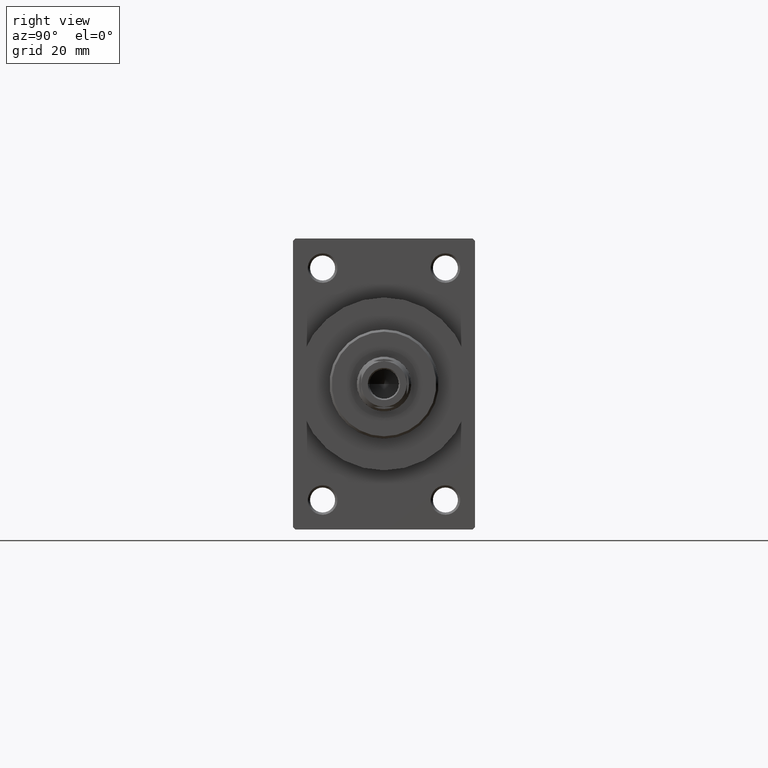
[diagram: clean part render]
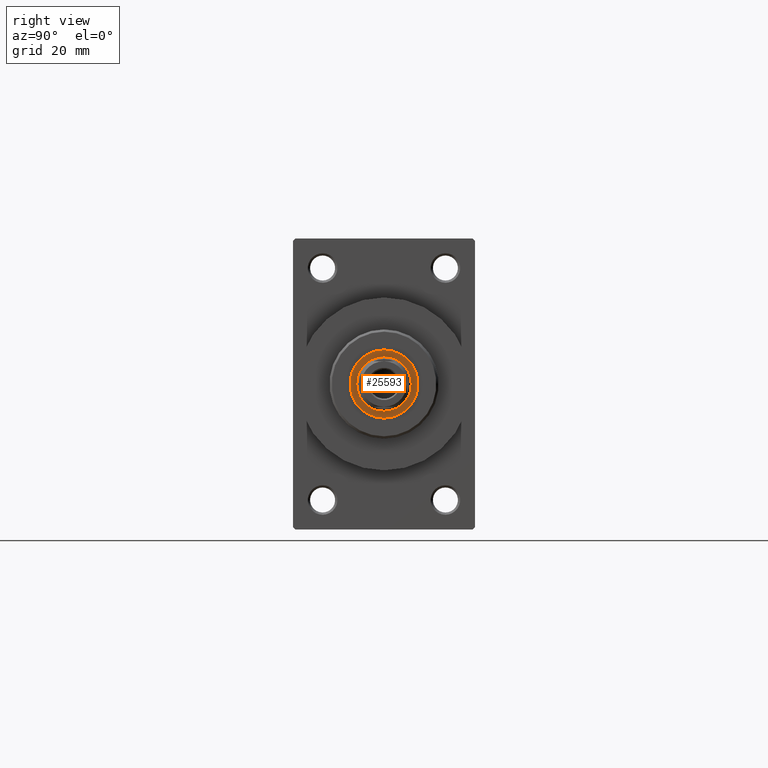
[diagram: same view with one face highlighted and labeled with its STEP entity id]
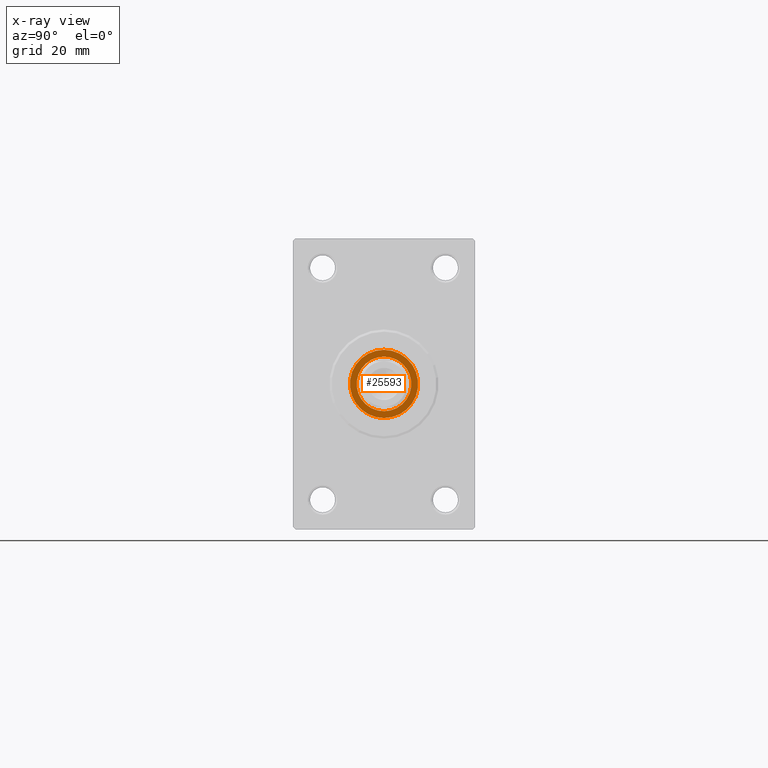
[diagram: x-ray of the same camera — body ghosted, the highlighted face saturated]
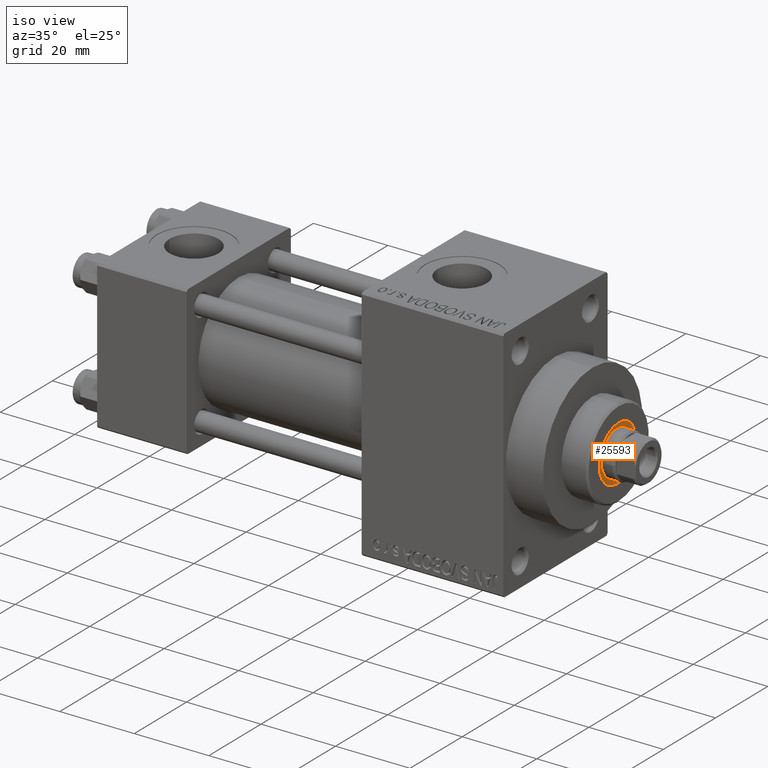
[diagram: same view with one face highlighted and labeled with its STEP entity id]
A machine part, right view. The second image highlights one B-rep face of the part: STEP entity #25593.
The next image is the same camera in x-ray: the body ghosted, the highlighted face saturated — about 0% of this face is hidden behind the body in this view.
A second angle (iso view) of the same face is appended — the face is thin or edge-on in the first view.
In plain terms, the highlighted planar face has unit normal (1, -0, -0).
Its self-contained STEP definition (entity closure, byte-faithful):
#201 = DIRECTION ( 'NONE',  ( 1.000000000000000000, 0.000000000000000000, 0.000000000000000000 ) ) ;
#1059 = VERTEX_POINT ( 'NONE', #34076 ) ;
#2826 = VERTEX_POINT ( 'NONE', #12397 ) ;
#3182 = CARTESIAN_POINT ( 'NONE',  ( 0.000000000000000000, 0.000000000000000000, 49.75999999999999801 ) ) ;
#3789 = CARTESIAN_POINT ( 'NONE',  ( 0.000000000000000000, 0.000000000000000000, 49.75999999999999801 ) ) ;
#4188 = ORIENTED_EDGE ( 'NONE', *, *, #46750, .T. ) ;
#4680 = AXIS2_PLACEMENT_3D ( 'NONE', #3789, #18296, #201 ) ;
#5372 = CARTESIAN_POINT ( 'NONE',  ( 0.000000000000000000, 0.000000000000000000, 49.75999999999999801 ) ) ;
#5938 = CARTESIAN_POINT ( 'NONE',  ( 6.000000000000000888, 0.000000000000000000, 49.75999999999999801 ) ) ;
#8068 = AXIS2_PLACEMENT_3D ( 'NONE', #15088, #29383, #29625 ) ;
#8706 = ORIENTED_EDGE ( 'NONE', *, *, #35419, .T. ) ;
#10318 = FACE_OUTER_BOUND ( 'NONE', #38926, .T. ) ;
#10660 = VERTEX_POINT ( 'NONE', #5938 ) ;
#12397 = CARTESIAN_POINT ( 'NONE',  ( -6.000000000000000888, 7.347880794884120722E-16, 49.75999999999999801 ) ) ;
#15088 = CARTESIAN_POINT ( 'NONE',  ( 0.000000000000000000, 0.000000000000000000, 49.75999999999999801 ) ) ;
#15390 = DIRECTION ( 'NONE',  ( 1.000000000000000000, 0.000000000000000000, 0.000000000000000000 ) ) ;
#17692 = DIRECTION ( 'NONE',  ( 0.000000000000000000, 0.000000000000000000, 1.000000000000000000 ) ) ;
#17856 = EDGE_CURVE ( 'NONE', #19498, #1059, #45281, .T. ) ;
#18296 = DIRECTION ( 'NONE',  ( -0.000000000000000000, -0.000000000000000000, -1.000000000000000000 ) ) ;
#18739 = CIRCLE ( 'NONE', #8068, 7.500000000000000888 ) ;
#19356 = ORIENTED_EDGE ( 'NONE', *, *, #17856, .T. ) ;
#19498 = VERTEX_POINT ( 'NONE', #22735 ) ;
#20157 = AXIS2_PLACEMENT_3D ( 'NONE', #5372, #34417, #35130 ) ;
#20595 = EDGE_LOOP ( 'NONE', ( #8706, #4188 ) ) ;
#20765 = EDGE_CURVE ( 'NONE', #1059, #19498, #18739, .T. ) ;
#21136 = CIRCLE ( 'NONE', #40921, 6.000000000000000888 ) ;
#22735 = CARTESIAN_POINT ( 'NONE',  ( 7.500000000000000888, 0.000000000000000000, 49.75999999999999801 ) ) ;
#24824 = PLANE ( 'NONE',  #31717 ) ;
#25593 = ADVANCED_FACE ( 'NONE', ( #10318, #35792 ), #24824, .T. ) ;
#29383 = DIRECTION ( 'NONE',  ( 0.000000000000000000, 0.000000000000000000, 1.000000000000000000 ) ) ;
#29625 = DIRECTION ( 'NONE',  ( 1.000000000000000000, 0.000000000000000000, 0.000000000000000000 ) ) ;
#29690 = CARTESIAN_POINT ( 'NONE',  ( 0.000000000000000000, 0.000000000000000000, 49.75999999999999801 ) ) ;
#31717 = AXIS2_PLACEMENT_3D ( 'NONE', #3182, #17692, #46738 ) ;
#32846 = CIRCLE ( 'NONE', #4680, 6.000000000000000888 ) ;
#34076 = CARTESIAN_POINT ( 'NONE',  ( -7.500000000000000888, 9.184850993605149917E-16, 49.75999999999999801 ) ) ;
#34417 = DIRECTION ( 'NONE',  ( 0.000000000000000000, 0.000000000000000000, 1.000000000000000000 ) ) ;
#35130 = DIRECTION ( 'NONE',  ( 1.000000000000000000, 0.000000000000000000, 0.000000000000000000 ) ) ;
#35419 = EDGE_CURVE ( 'NONE', #10660, #2826, #21136, .T. ) ;
#35792 = FACE_BOUND ( 'NONE', #20595, .T. ) ;
#38926 = EDGE_LOOP ( 'NONE', ( #19356, #38965 ) ) ;
#38965 = ORIENTED_EDGE ( 'NONE', *, *, #20765, .T. ) ;
#40921 = AXIS2_PLACEMENT_3D ( 'NONE', #29690, #44211, #15390 ) ;
#44211 = DIRECTION ( 'NONE',  ( -0.000000000000000000, -0.000000000000000000, -1.000000000000000000 ) ) ;
#45281 = CIRCLE ( 'NONE', #20157, 7.500000000000000888 ) ;
#46738 = DIRECTION ( 'NONE',  ( 1.000000000000000000, 0.000000000000000000, -0.000000000000000000 ) ) ;
#46750 = EDGE_CURVE ( 'NONE', #2826, #10660, #32846, .T. ) ;